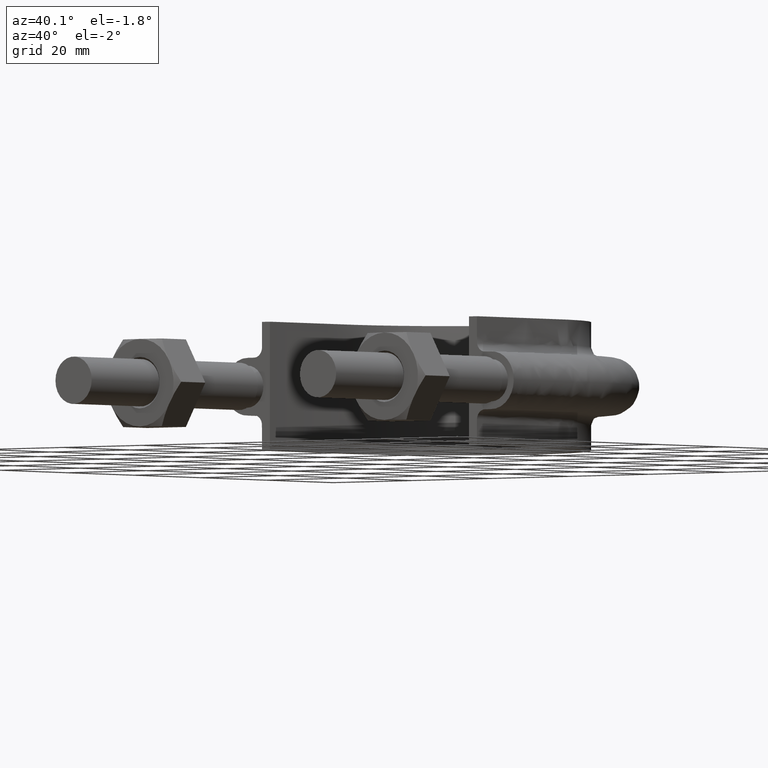
[diagram: clean part render]
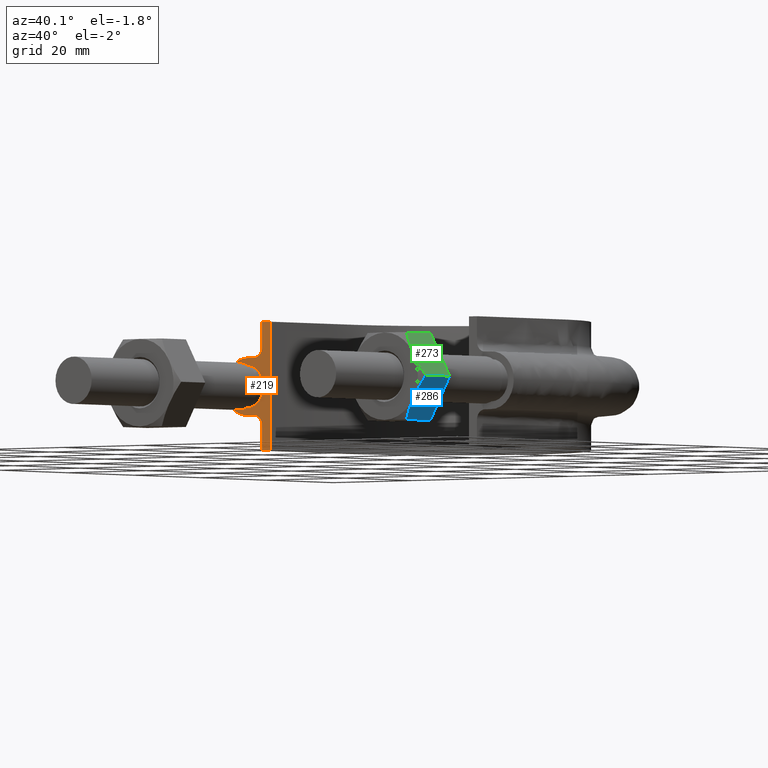
[diagram: same view with three faces highlighted in distinct colors, each labeled with its STEP entity id]
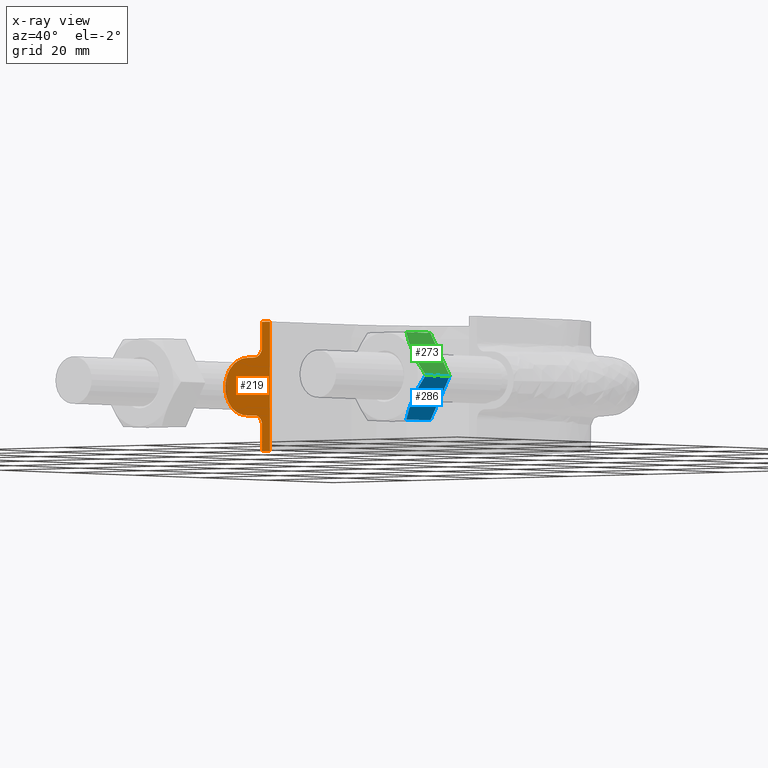
[diagram: x-ray of the same camera — body ghosted, the three highlighted faces saturated]
A machine part, auxiliary view with three faces highlighted in distinct colors.
The next image is the same camera in x-ray (body ghosted, the three faces saturated) — at least one of them is partly hidden behind the body in this view.
Their STEP definitions:

[orange] entity #219 — the highlighted planar face has unit normal (0, 1, 0).
#219 = ADVANCED_FACE( '', ( #295 ), #296, .F. );
#295 = FACE_OUTER_BOUND( '', #462, .T. );
#296 = PLANE( '', #463 );
#462 = EDGE_LOOP( '', ( #1305, #1306, #1307, #1308 ) );
#463 = AXIS2_PLACEMENT_3D( '', #1309, #1310, #1311 );
#1305 = ORIENTED_EDGE( '', *, *, #1839, .F. );
#1306 = ORIENTED_EDGE( '', *, *, #1840, .F. );
#1307 = ORIENTED_EDGE( '', *, *, #1841, .T. );
#1308 = ORIENTED_EDGE( '', *, *, #1842, .T. );
#1309 = CARTESIAN_POINT( '', ( -39.9999999999999, 52.3000000000000, 12.5000000000000 ) );
#1310 = DIRECTION( '', ( 1.22460635382238E-016, 1.00000000000000, 0.000000000000000 ) );
#1311 = DIRECTION( '', ( -1.00000000000000, 1.22460635382238E-016, 0.000000000000000 ) );
#1839 = EDGE_CURVE( '', #1989, #1990, #1991, .T. );
#1840 = EDGE_CURVE( '', #1992, #1989, #1993, .T. );
#1841 = EDGE_CURVE( '', #1992, #1994, #1995, .T. );
#1842 = EDGE_CURVE( '', #1994, #1990, #1996, .T. );
#1989 = VERTEX_POINT( '', #2235 );
#1990 = VERTEX_POINT( '', #2236 );
#1991 = LINE( '', #2237, #2238 );
#1992 = VERTEX_POINT( '', #2239 );
#1993 = LINE( '', #2240, #2241 );
#1994 = VERTEX_POINT( '', #2242 );
#1995 = B_SPLINE_CURVE_WITH_KNOTS( '', 3, ( #2243, #2244, #2245, #2246, #2247, #2248, #2249, #2250, #2251, #2252, #2253, #2254, #2255, #2256, #2257, #2258, #2259, #2260, #2261, #2262, #2263, #2264, #2265, #2266, #2267, #2268, #2269, #2270, #2271, #2272, #2273 ), .UNSPECIFIED., .F., .F., ( 4, 3, 1, 1, 1, 3, 3, 1, 1, 1, 3, 3, 1, 1, 1, 3, 4 ), ( 0.000000000000000, 0.00230481078830113, 0.00460962157660226, 0.00691443236490339, 0.00921924315320452, 0.0115240539415057, 0.0138288647298068, 0.0161336755181079, 0.0184384863064090, 0.0207432970947102, 0.0230481078830113, 0.0253529186713124, 0.0276577294596136, 0.0299625402479147, 0.0322673510362158, 0.0345721618245170, 0.0368769726128181 ), .UNSPECIFIED. );
#1996 = LINE( '', #2274, #2275 );
#2235 = CARTESIAN_POINT( '', ( -25.2500000000000, 52.3000000000000, 12.5000000000000 ) );
#2236 = CARTESIAN_POINT( '', ( -25.2500000000000, 52.3000000000000, -12.5000000000000 ) );
#2237 = CARTESIAN_POINT( '', ( -25.2500000000000, 52.3000000000000, 12.5000100000910 ) );
#2238 = VECTOR( '', #2878, 1000.00000000000 );
#2239 = CARTESIAN_POINT( '', ( -27.2500000000000, 52.3000000000000, 12.5000000000000 ) );
#2240 = CARTESIAN_POINT( '', ( -39.9999999999999, 52.3000000000000, 12.5000000000000 ) );
#2241 = VECTOR( '', #2879, 1000.00000000000 );
#2242 = CARTESIAN_POINT( '', ( -27.2500000000000, 52.3000000000000, -12.5000000000000 ) );
#2243 = CARTESIAN_POINT( '', ( -27.2500000000000, 52.3000000000000, 12.5000000000000 ) );
#2244 = CARTESIAN_POINT( '', ( -27.2500000000000, 52.3000000000000, 10.8666666666667 ) );
#2245 = CARTESIAN_POINT( '', ( -27.2500000000000, 52.3000000000000, 9.23333333333333 ) );
#2246 = CARTESIAN_POINT( '', ( -27.2500000000000, 52.3000000000000, 7.59999999999999 ) );
#2247 = CARTESIAN_POINT( '', ( -27.2500000000000, 52.3000000000000, 7.33823584172332 ) );
#2248 = CARTESIAN_POINT( '', ( -27.3541362568359, 52.3000000000000, 6.81470752517000 ) );
#2249 = CARTESIAN_POINT( '', ( -27.7989687109389, 52.3000000000000, 6.14896871093887 ) );
#2250 = CARTESIAN_POINT( '', ( -28.4647075251700, 52.3000000000000, 5.70413625683590 ) );
#2251 = CARTESIAN_POINT( '', ( -28.9882358417233, 52.3000000000000, 5.59999999999999 ) );
#2252 = CARTESIAN_POINT( '', ( -29.2500000000000, 52.3000000000000, 5.59999999999999 ) );
#2253 = CARTESIAN_POINT( '', ( -29.8333333333333, 52.3000000000000, 5.60000000000001 ) );
#2254 = CARTESIAN_POINT( '', ( -30.4166666666667, 52.3000000000000, 5.60000000000001 ) );
#2255 = CARTESIAN_POINT( '', ( -31.0000000000000, 52.3000000000000, 5.60000000000001 ) );
#2256 = CARTESIAN_POINT( '', ( -32.4627416997969, 52.3000000000000, 5.60000000000001 ) );
#2257 = CARTESIAN_POINT( '', ( -35.3882250993908, 52.3000000000000, 4.38822509939087 ) );
#2258 = CARTESIAN_POINT( '', ( -37.2058874503046, 52.3000000000000, 9.94452457394278E-015 ) );
#2259 = CARTESIAN_POINT( '', ( -35.3882250993908, 52.3000000000000, -4.38822509939084 ) );
#2260 = CARTESIAN_POINT( '', ( -32.4627416997969, 52.3000000000000, -5.59999999999999 ) );
#2261 = CARTESIAN_POINT( '', ( -31.0000000000000, 52.3000000000000, -5.59999999999999 ) );
#2262 = CARTESIAN_POINT( '', ( -30.4166666666667, 52.3000000000000, -5.59999999999999 ) );
#2263 = CARTESIAN_POINT( '', ( -29.8333333333333, 52.3000000000000, -5.59999999999999 ) );
#2264 = CARTESIAN_POINT( '', ( -29.2500000000000, 52.3000000000000, -5.59999999999999 ) );
#2265 = CARTESIAN_POINT( '', ( -28.9882358417234, 52.3000000000000, -5.59999999999999 ) );
#2266 = CARTESIAN_POINT( '', ( -28.4647075251700, 52.3000000000000, -5.70413625683589 ) );
#2267 = CARTESIAN_POINT( '', ( -27.7989687109389, 52.3000000000000, -6.14896871093886 ) );
#2268 = CARTESIAN_POINT( '', ( -27.3541362568359, 52.3000000000000, -6.81470752516999 ) );
#2269 = CARTESIAN_POINT( '', ( -27.2500000000000, 52.3000000000000, -7.33823584172332 ) );
#2270 = CARTESIAN_POINT( '', ( -27.2500000000000, 52.3000000000000, -7.59999999999998 ) );
#2271 = CARTESIAN_POINT( '', ( -27.2500000000000, 52.3000000000000, -9.23333333333331 ) );
#2272 = CARTESIAN_POINT( '', ( -27.2500000000000, 52.3000000000000, -10.8666666666666 ) );
#2273 = CARTESIAN_POINT( '', ( -27.2500000000000, 52.3000000000000, -12.5000000000000 ) );
#2274 = CARTESIAN_POINT( '', ( -39.9999999999999, 52.3000000000000, -12.5000000000000 ) );
#2275 = VECTOR( '', #2880, 1000.00000000000 );
#2878 = DIRECTION( '', ( 0.000000000000000, 0.000000000000000, -1.00000000000000 ) );
#2879 = DIRECTION( '', ( 1.00000000000000, -1.22460635382238E-016, 0.000000000000000 ) );
#2880 = DIRECTION( '', ( 1.00000000000000, -1.22460635382238E-016, 0.000000000000000 ) );

[blue] entity #286 — the highlighted planar face has unit normal (-0.866, 0, 0.5).
#286 = ADVANCED_FACE( '', ( #443 ), #444, .F. );
#443 = FACE_OUTER_BOUND( '', #1286, .T. );
#444 = PLANE( '', #1287 );
#1286 = EDGE_LOOP( '', ( #1788, #1789, #1790, #1791, #1792 ) );
#1287 = AXIS2_PLACEMENT_3D( '', #1793, #1794, #1795 );
#1788 = ORIENTED_EDGE( '', *, *, #1951, .F. );
#1789 = ORIENTED_EDGE( '', *, *, #1984, .F. );
#1790 = ORIENTED_EDGE( '', *, *, #1985, .F. );
#1791 = ORIENTED_EDGE( '', *, *, #1958, .F. );
#1792 = ORIENTED_EDGE( '', *, *, #1978, .F. );
#1793 = CARTESIAN_POINT( '', ( 40.8149545762236, 28.0000000000000, 5.07157250223544E-015 ) );
#1794 = DIRECTION( '', ( -0.866025403784439, 1.42085446679231E-017, 0.500000000000000 ) );
#1795 = DIRECTION( '', ( 0.500000000000000, -2.20311349498021E-016, 0.866025403784439 ) );
#1951 = EDGE_CURVE( '', #2162, #2175, #2176, .T. );
#1958 = EDGE_CURVE( '', #2186, #2188, #2189, .T. );
#1978 = EDGE_CURVE( '', #2175, #2186, #2219, .T. );
#1984 = EDGE_CURVE( '', #2227, #2162, #2228, .T. );
#1985 = EDGE_CURVE( '', #2188, #2227, #2229, .F. );
#2162 = VERTEX_POINT( '', #2731 );
#2175 = VERTEX_POINT( '', #2752 );
#2176 = B_SPLINE_CURVE_WITH_KNOTS( '', 3, ( #2753, #2754, #2755, #2756, #2757, #2758, #2759, #2760 ), .UNSPECIFIED., .F., .F., ( 4, 2, 2, 4 ), ( 0.00493529902949373, 0.00616408349151779, 0.00739286795354186, 0.00985043687758998 ), .UNSPECIFIED. );
#2186 = VERTEX_POINT( '', #2771 );
#2188 = VERTEX_POINT( '', #2773 );
#2189 = LINE( '', #2774, #2775 );
#2219 = LINE( '', #2843, #2844 );
#2227 = VERTEX_POINT( '', #2864 );
#2228 = B_SPLINE_CURVE_WITH_KNOTS( '', 3, ( #2865, #2866, #2867, #2868, #2869, #2870 ), .UNSPECIFIED., .F., .F., ( 4, 2, 4 ), ( 7.17194508351968E-007, 0.00246800811200104, 0.00493529902949373 ), .UNSPECIFIED. );
#2229 = LINE( '', #2871, #2872 );
#2731 = CARTESIAN_POINT( '', ( 38.3612159321677, 20.0000000000000, -4.25000000000000 ) );
#2752 = CARTESIAN_POINT( '', ( 40.7999656118192, 20.7505553499465, -0.0259616479013750 ) );
#2753 = CARTESIAN_POINT( '', ( 38.3612159321677, 20.0000000000000, -4.24999999999999 ) );
#2754 = CARTESIAN_POINT( '', ( 38.5680707460432, 20.0000000000000, -3.89171695257749 ) );
#2755 = CARTESIAN_POINT( '', ( 38.7759593429690, 20.0177112141220, -3.53164334038783 ) );
#2756 = CARTESIAN_POINT( '', ( 39.1872154329965, 20.0863020976798, -2.81932689753802 ) );
#2757 = CARTESIAN_POINT( '', ( 39.3914764911661, 20.1371114863339, -2.46553636678045 ) );
#2758 = CARTESIAN_POINT( '', ( 40.0006497745581, 20.3331491064655, -1.41041728933201 ) );
#2759 = CARTESIAN_POINT( '', ( 40.4019654977714, 20.5218250443849, -0.715318066850377 ) );
#2760 = CARTESIAN_POINT( '', ( 40.7999656118192, 20.7505553499465, -0.0259616479013715 ) );
#2771 = CARTESIAN_POINT( '', ( 40.7999656118192, 28.0000000000000, -0.0259616479013762 ) );
#2773 = CARTESIAN_POINT( '', ( 35.9224662525163, 28.0000000000000, -8.47403835209861 ) );
#2774 = CARTESIAN_POINT( '', ( 35.9112159321677, 28.0000000000000, -8.49352447854375 ) );
#2775 = VECTOR( '', #3071, 1000.00000000000 );
#2843 = CARTESIAN_POINT( '', ( 40.7999656118192, 28.0000000000000, -0.0259616479013756 ) );
#2844 = VECTOR( '', #3096, 1000.00000000000 );
#2864 = CARTESIAN_POINT( '', ( 35.9224662525163, 20.7505553499465, -8.47403835209862 ) );
#2865 = CARTESIAN_POINT( '', ( 35.9224662525163, 20.7505553499465, -8.47403835209861 ) );
#2866 = CARTESIAN_POINT( '', ( 36.3215180192883, 20.5212206605155, -7.78286041719929 ) );
#2867 = CARTESIAN_POINT( '', ( 36.7234521124811, 20.3324529479805, -7.08669014649528 ) );
#2868 = CARTESIAN_POINT( '', ( 37.5355975738497, 20.0714150925759, -5.68001294426847 ) );
#2869 = CARTESIAN_POINT( '', ( 37.9458696942491, 20.0000000000000, -4.96940078680767 ) );
#2870 = CARTESIAN_POINT( '', ( 38.3612159321677, 20.0000000000000, -4.24999999999999 ) );
#2871 = CARTESIAN_POINT( '', ( 35.9224662525163, 28.0000000000000, -8.47403835209862 ) );
#2872 = VECTOR( '', #3102, 1000.00000000000 );
#3071 = DIRECTION( '', ( -0.500000000000000, 2.20311349498021E-016, -0.866025403784439 ) );
#3096 = DIRECTION( '', ( 1.22460635382238E-016, 1.00000000000000, 1.83690953073357E-016 ) );
#3102 = DIRECTION( '', ( 1.22460635382238E-016, 1.00000000000000, 1.83690953073357E-016 ) );

[green] entity #273 — the highlighted planar face has unit normal (-0.866, 0, -0.5).
#273 = ADVANCED_FACE( '', ( #416 ), #417, .F. );
#416 = FACE_OUTER_BOUND( '', #1259, .T. );
#417 = PLANE( '', #1260 );
#1259 = EDGE_LOOP( '', ( #1683, #1684, #1685, #1686, #1687 ) );
#1260 = AXIS2_PLACEMENT_3D( '', #1688, #1689, #1690 );
#1683 = ORIENTED_EDGE( '', *, *, #1940, .F. );
#1684 = ORIENTED_EDGE( '', *, *, #1947, .F. );
#1685 = ORIENTED_EDGE( '', *, *, #1948, .F. );
#1686 = ORIENTED_EDGE( '', *, *, #1949, .F. );
#1687 = ORIENTED_EDGE( '', *, *, #1950, .F. );
#1688 = CARTESIAN_POINT( '', ( 35.9074772881118, 28.0000000000000, 8.50000000000000 ) );
#1689 = DIRECTION( '', ( -0.866025403784439, 1.97899497741280E-016, -0.500000000000000 ) );
#1690 = DIRECTION( '', ( -0.500000000000000, -9.78507141157832E-017, 0.866025403784439 ) );
#1940 = EDGE_CURVE( '', #2154, #2150, #2156, .T. );
#1947 = EDGE_CURVE( '', #2168, #2154, #2169, .T. );
#1948 = EDGE_CURVE( '', #2170, #2168, #2171, .F. );
#1949 = EDGE_CURVE( '', #2172, #2170, #2173, .T. );
#1950 = EDGE_CURVE( '', #2150, #2172, #2174, .T. );
#2150 = VERTEX_POINT( '', #2707 );
#2154 = VERTEX_POINT( '', #2716 );
#2156 = B_SPLINE_CURVE_WITH_KNOTS( '', 3, ( #2718, #2719, #2720, #2721, #2722, #2723, #2724, #2725 ), .UNSPECIFIED., .F., .F., ( 4, 2, 2, 4 ), ( 0.00493506423428099, 0.00616384870526321, 0.00739263317624543, 0.00985020211820987 ), .UNSPECIFIED. );
#2168 = VERTEX_POINT( '', #2737 );
#2169 = B_SPLINE_CURVE_WITH_KNOTS( '', 3, ( #2738, #2739, #2740, #2741, #2742, #2743 ), .UNSPECIFIED., .F., .F., ( 4, 2, 4 ), ( 4.83064900410388E-007, 0.00246777364959070, 0.00493506423428099 ), .UNSPECIFIED. );
#2170 = VERTEX_POINT( '', #2744 );
#2171 = LINE( '', #2745, #2746 );
#2172 = VERTEX_POINT( '', #2747 );
#2173 = LINE( '', #2748, #2749 );
#2174 = LINE( '', #2750, #2751 );
#2707 = CARTESIAN_POINT( '', ( 35.9224662525163, 20.7505553499465, 8.47403835209862 ) );
#2716 = CARTESIAN_POINT( '', ( 38.3612159321677, 20.0000000000000, 4.25000000000000 ) );
#2718 = CARTESIAN_POINT( '', ( 38.3612159321677, 20.0000000000000, 4.25000000000000 ) );
#2719 = CARTESIAN_POINT( '', ( 38.1543614605611, 20.0000000000000, 4.60828245459559 ) );
#2720 = CARTESIAN_POINT( '', ( 37.9464724694540, 20.0177112081763, 4.96835674952724 ) );
#2721 = CARTESIAN_POINT( '', ( 37.5352159436566, 20.0863021936212, 5.68067394715264 ) );
#2722 = CARTESIAN_POINT( '', ( 37.3309547652762, 20.1371116504194, 6.03446468612132 ) );
#2723 = CARTESIAN_POINT( '', ( 36.7217813693342, 20.3331494013913, 7.08958395851212 ) );
#2724 = CARTESIAN_POINT( '', ( 36.3204658996231, 20.5218253127355, 7.78468274191512 ) );
#2725 = CARTESIAN_POINT( '', ( 35.9224662525163, 20.7505553499465, 8.47403835209862 ) );
#2737 = CARTESIAN_POINT( '', ( 40.7999656118192, 20.7505553499465, 0.0259616479013844 ) );
#2738 = CARTESIAN_POINT( '', ( 40.7999656118192, 20.7505553499465, 0.0259616479013802 ) );
#2739 = CARTESIAN_POINT( '', ( 40.4009132475383, 20.5212203171277, 0.717140617716314 ) );
#2740 = CARTESIAN_POINT( '', ( 39.9989787792964, 20.3324525365440, 1.41331153802454 ) );
#2741 = CARTESIAN_POINT( '', ( 39.1868332408957, 20.0714148540586, 2.81998887367487 ) );
#2742 = CARTESIAN_POINT( '', ( 38.7765614237886, 20.0000000000000, 3.53060050581790 ) );
#2743 = CARTESIAN_POINT( '', ( 38.3612159321677, 20.0000000000000, 4.25000000000000 ) );
#2744 = CARTESIAN_POINT( '', ( 40.7999656118192, 28.0000000000000, 0.0259616479013866 ) );
#2745 = CARTESIAN_POINT( '', ( 40.7999656118192, 28.0000000000000, 0.0259616479013857 ) );
#2746 = VECTOR( '', #3052, 1000.00000000000 );
#2747 = CARTESIAN_POINT( '', ( 35.9224662525163, 28.0000000000000, 8.47403835209862 ) );
#2748 = CARTESIAN_POINT( '', ( 35.9112159321677, 28.0000000000000, 8.49352447854375 ) );
#2749 = VECTOR( '', #3053, 1000.00000000000 );
#2750 = CARTESIAN_POINT( '', ( 35.9224662525163, 28.0000000000000, 8.47403835209862 ) );
#2751 = VECTOR( '', #3054, 1000.00000000000 );
#3052 = DIRECTION( '', ( 1.22460635382238E-016, 1.00000000000000, 1.83690953073357E-016 ) );
#3053 = DIRECTION( '', ( 0.500000000000000, 9.78507141157832E-017, -0.866025403784439 ) );
#3054 = DIRECTION( '', ( 1.22460635382238E-016, 1.00000000000000, 1.83690953073357E-016 ) );